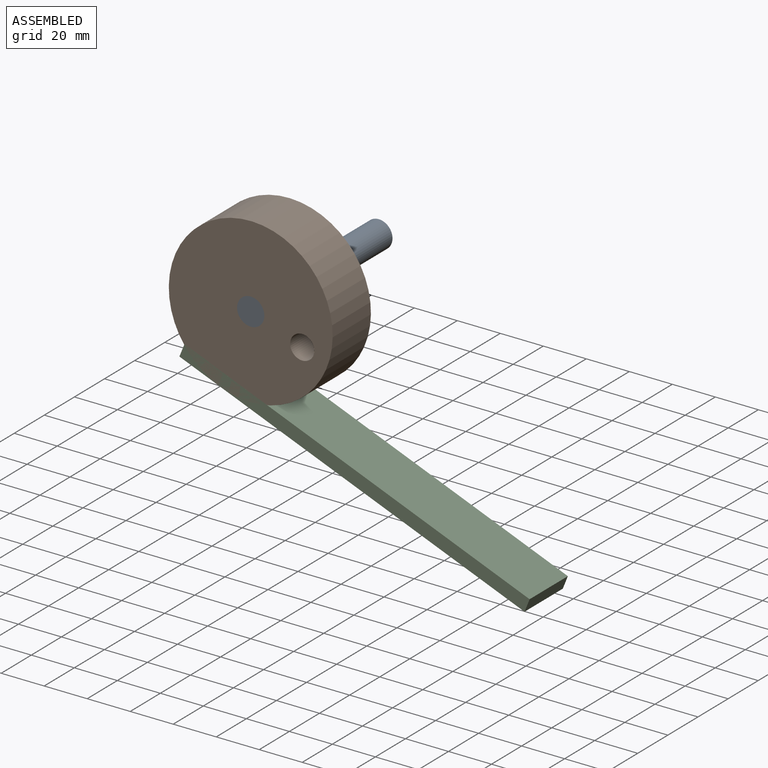
[diagram: assembled view]
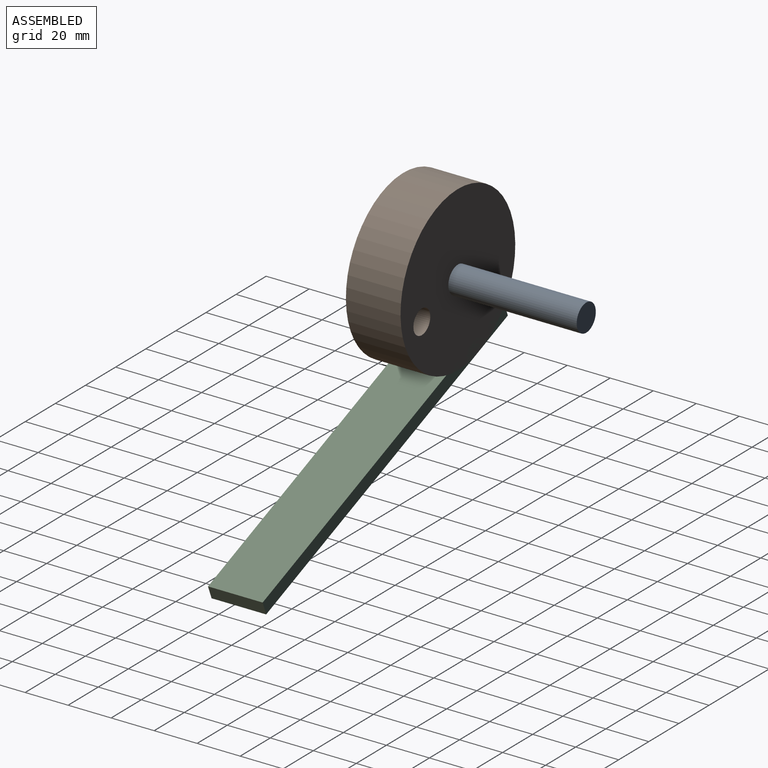
[diagram: assembled view, second angle]
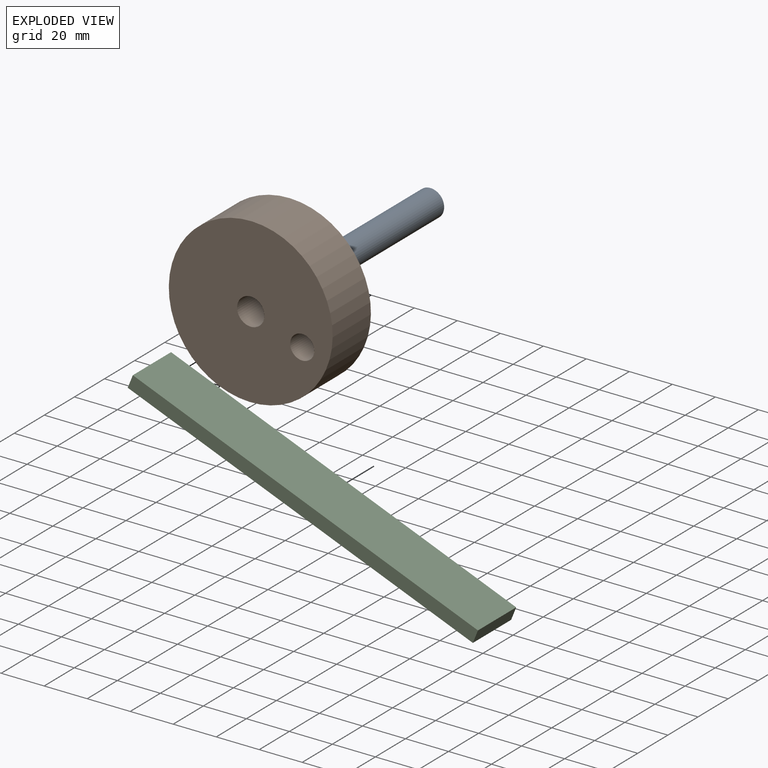
[diagram: exploded view]
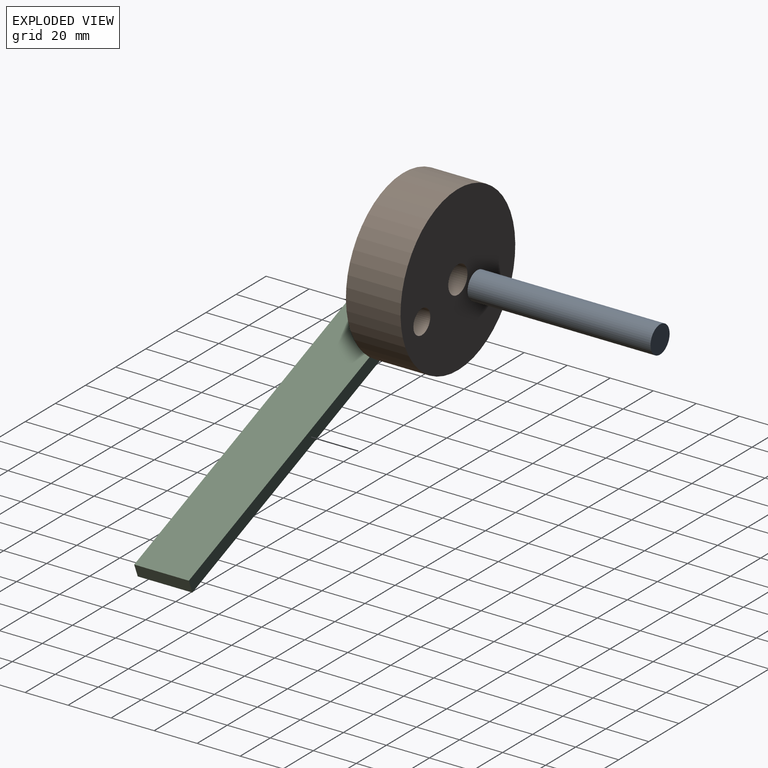
[diagram: exploded view, second angle]
ASSEMBLY  parts=3 mates=3
PART A: 3 faces, bbox 12.7x85.1x12.7 mm
  f0: cylinder r=6.35mm len=85.09mm, axis (0,1,0), area 3394.9mm2, adj f1,f2
  f1: plane 12.7x12.7mm, normal (0,-1,0), area 126.7mm2, adj f0
  f2: plane 12.7x12.7mm, normal (0,1,0), area 126.7mm2, adj f0
PART B: 5 faces, bbox 76.2x25.4x76.2 mm
  f0: cylinder r=6.35mm len=25.4mm, axis (0,1,0), area 1013.4mm2, adj f2,f3
  f1: cylinder r=38.1mm len=76.2mm, axis (0,1,0), area 6080.5mm2, adj f2,f3
  f2: plane 76.2x76.2mm, normal (0,-1,0), area 4335mm2, adj f0,f1,f4
  f3: plane 76.2x76.2mm, normal (0,1,0), area 4335mm2, adj f0,f1,f4
  f4: cylinder r=5.6mm len=25.4mm, axis (0,-1,0), area 894.3mm2, adj f2,f3
PART C: 6 faces, bbox 172.9x25.4x6.4 mm
  f0: plane 25.4x6.35mm, normal (-1,0,0), area 161.3mm2, adj f1,f3,f4,f5
  f1: plane 172.91x25.4mm, normal (0,0,-1), area 4391.9mm2, adj f0,f2,f4,f5
  f2: plane 25.4x6.35mm, normal (1,0,0), area 161.3mm2, adj f1,f3,f4,f5
  f3: plane 172.91x25.4mm, normal (0,0,1), area 4391.9mm2, adj f0,f2,f4,f5
  f4: plane 172.91x6.35mm, normal (0,-1,0), area 1098mm2, adj f0,f1,f2,f3
  f5: plane 172.91x6.35mm, normal (0,1,0), area 1098mm2, adj f0,f1,f2,f3
PLACE A t=(43.04,-1.2,55.81)mm fixed
PLACE B rot(axis=(0,1,0),68.4deg) t=(-91.58,-60.89,74.93)mm
PLACE C rot(axis=(0,-1,0),158.2deg) t=(-38.86,-60.89,-28.3)mm
MATE planar C.f4 <-> B.f0  axis (0,-1,0) through (-43.32,-86.29,17.95)mm
MATE cylindrical A.f0 <-> B.f0  axis (0,1,0) through (-91.58,-86.29,74.93)mm
MATE planar A.f0 <-> B.f2  axis (0,-1,0) through (-91.58,-86.29,74.93)mm
